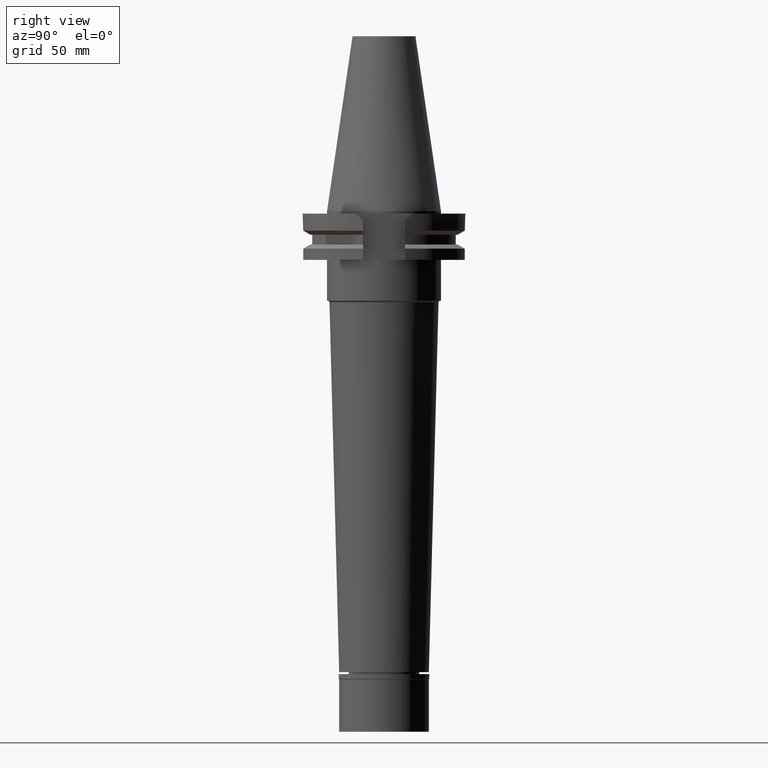
[diagram: clean part render]
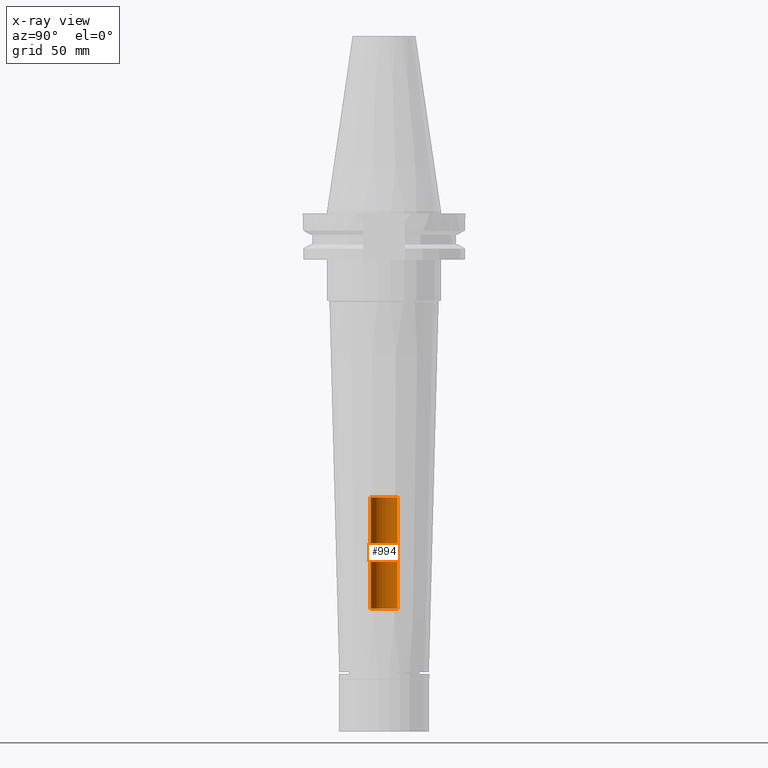
[diagram: x-ray — body ghosted, one internal face saturated and labeled with its STEP entity id]
A machine part, right view, then the same camera in x-ray: the body is ghosted and one INTERNAL B-rep face — a face not visible from any outside direction — is saturated and labeled: STEP entity #994.
In plain terms, the highlighted cylindrical surface (edge-blend (fillet) strip) has radius 5.2 mm, axis along (0, 0, -1).
Its self-contained STEP definition (entity closure, byte-faithful):
#60 = ORIENTED_EDGE ( 'NONE', *, *, #1103, .F. ) ;
#73 = LINE ( 'NONE', #2194, #315 ) ;
#79 = EDGE_CURVE ( 'NONE', #293, #1485, #222, .T. ) ;
#156 = CYLINDRICAL_SURFACE ( 'NONE', #2768, 5.200000000000000178 ) ;
#222 = CIRCLE ( 'NONE', #2115, 5.200000000000000178 ) ;
#293 = VERTEX_POINT ( 'NONE', #3162 ) ;
#315 = VECTOR ( 'NONE', #1100, 1000.000000000000000 ) ;
#318 = DIRECTION ( 'NONE',  ( 0.0000000000000000000, 0.0000000000000000000, 1.000000000000000000 ) ) ;
#424 = DIRECTION ( 'NONE',  ( 0.0000000000000000000, -1.000000000000000000, 0.0000000000000000000 ) ) ;
#994 = ADVANCED_FACE ( 'NONE', ( #2495 ), #156, .F. ) ;
#1003 = CARTESIAN_POINT ( 'NONE',  ( 0.0000000000000000000, 2.222580859602999833E-14, -155.2000000000000171 ) ) ;
#1072 = CARTESIAN_POINT ( 'NONE',  ( 0.0000000000000000000, 2.222580859602999833E-14, -111.7500000000000000 ) ) ;
#1100 = DIRECTION ( 'NONE',  ( 0.0000000000000000000, 0.0000000000000000000, 1.000000000000000000 ) ) ;
#1103 = EDGE_CURVE ( 'NONE', #293, #2278, #2648, .T. ) ;
#1125 = DIRECTION ( 'NONE',  ( 0.0000000000000000000, 1.000000000000000000, 0.0000000000000000000 ) ) ;
#1182 = CARTESIAN_POINT ( 'NONE',  ( 0.0000000000000000000, 2.222580859602999833E-14, 81.48750000000001137 ) ) ;
#1187 = ORIENTED_EDGE ( 'NONE', *, *, #1794, .T. ) ;
#1220 = AXIS2_PLACEMENT_3D ( 'NONE', #1072, #318, #1125 ) ;
#1265 = CARTESIAN_POINT ( 'NONE',  ( 0.0000000000000000000, -5.200000000000000178, -155.2000000000000171 ) ) ;
#1286 = EDGE_CURVE ( 'NONE', #1485, #1974, #73, .T. ) ;
#1333 = VECTOR ( 'NONE', #2599, 1000.000000000000000 ) ;
#1485 = VERTEX_POINT ( 'NONE', #2528 ) ;
#1497 = EDGE_LOOP ( 'NONE', ( #1187, #60, #1857, #3299 ) ) ;
#1794 = EDGE_CURVE ( 'NONE', #1974, #2278, #2037, .T. ) ;
#1857 = ORIENTED_EDGE ( 'NONE', *, *, #79, .T. ) ;
#1974 = VERTEX_POINT ( 'NONE', #2274 ) ;
#2037 = CIRCLE ( 'NONE', #1220, 5.200000000000000178 ) ;
#2115 = AXIS2_PLACEMENT_3D ( 'NONE', #1003, #2330, #2614 ) ;
#2194 = CARTESIAN_POINT ( 'NONE',  ( 0.0000000000000000000, 5.200000000000000178, -155.2000000000000171 ) ) ;
#2232 = DIRECTION ( 'NONE',  ( 0.0000000000000000000, 0.0000000000000000000, -1.000000000000000000 ) ) ;
#2274 = CARTESIAN_POINT ( 'NONE',  ( 0.0000000000000000000, 5.200000000000000178, -111.7500000000000000 ) ) ;
#2278 = VERTEX_POINT ( 'NONE', #3333 ) ;
#2330 = DIRECTION ( 'NONE',  ( 0.0000000000000000000, 0.0000000000000000000, -1.000000000000000000 ) ) ;
#2495 = FACE_OUTER_BOUND ( 'NONE', #1497, .T. ) ;
#2528 = CARTESIAN_POINT ( 'NONE',  ( 0.0000000000000000000, 5.200000000000000178, -155.2000000000000171 ) ) ;
#2599 = DIRECTION ( 'NONE',  ( 0.0000000000000000000, 0.0000000000000000000, 1.000000000000000000 ) ) ;
#2614 = DIRECTION ( 'NONE',  ( 0.0000000000000000000, -1.000000000000000000, 0.0000000000000000000 ) ) ;
#2648 = LINE ( 'NONE', #1265, #1333 ) ;
#2768 = AXIS2_PLACEMENT_3D ( 'NONE', #1182, #2232, #424 ) ;
#3162 = CARTESIAN_POINT ( 'NONE',  ( 0.0000000000000000000, -5.200000000000000178, -155.2000000000000171 ) ) ;
#3299 = ORIENTED_EDGE ( 'NONE', *, *, #1286, .T. ) ;
#3333 = CARTESIAN_POINT ( 'NONE',  ( 0.0000000000000000000, -5.200000000000000178, -111.7500000000000000 ) ) ;